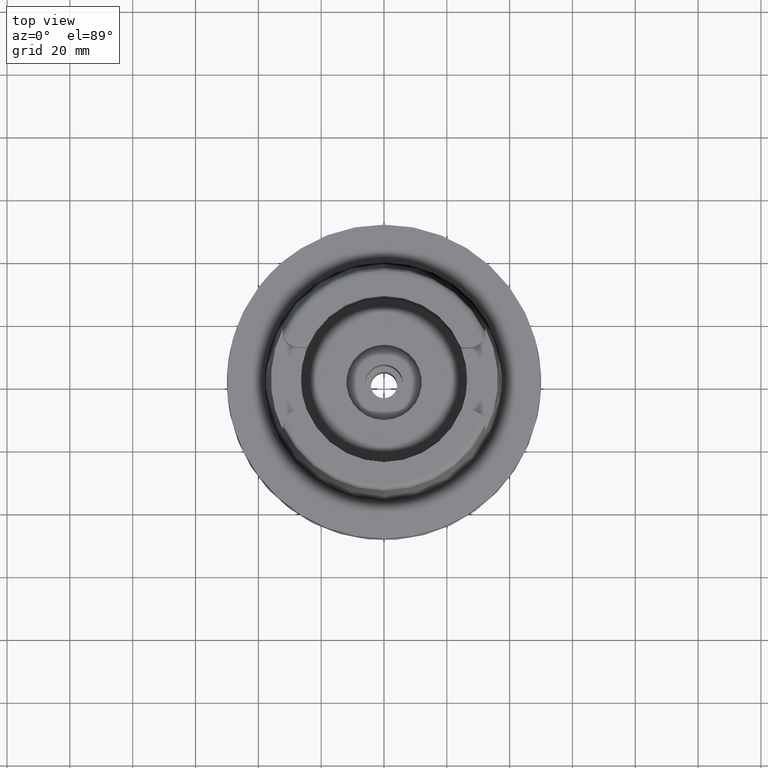
[diagram: clean part render]
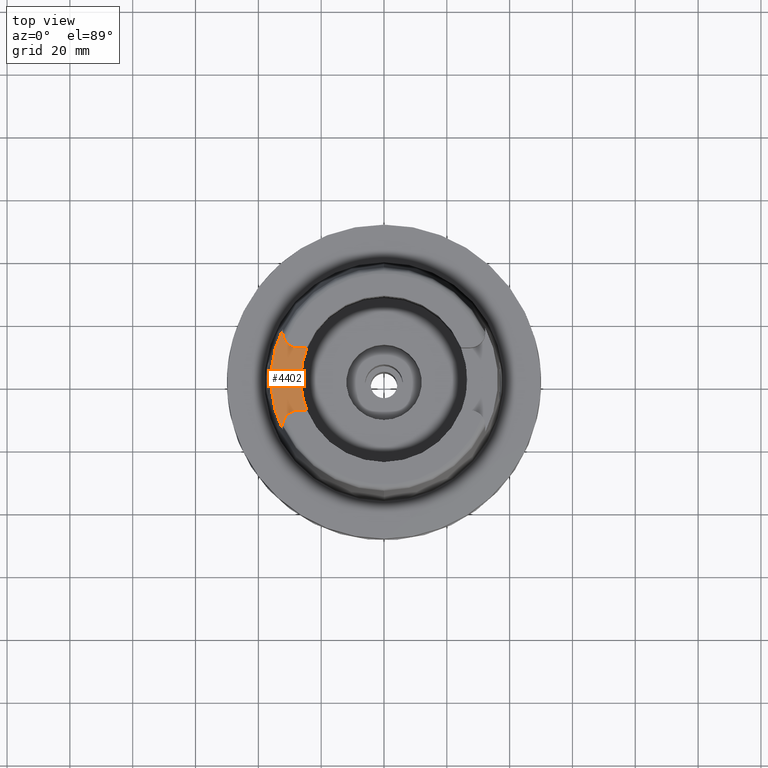
[diagram: same view with one face highlighted and labeled with its STEP entity id]
A machine part, top view. The second image highlights one B-rep face of the part: STEP entity #4402.
In plain terms, the highlighted planar face has unit normal (0, 0, 1).
Its self-contained STEP definition (entity closure, byte-faithful):
#16 = DIRECTION ( 'NONE',  ( 0.0000000000000000000, 0.0000000000000000000, 1.000000000000000000 ) ) ;
#41 = DIRECTION ( 'NONE',  ( -0.9259134021805098813, 0.3777358490566039562, 0.0000000000000000000 ) ) ;
#120 = EDGE_CURVE ( 'NONE', #562, #2157, #2807, .T. ) ;
#295 = CARTESIAN_POINT ( 'NONE',  ( -32.24999876011999334, -15.99794043148000000, 40.00000000000000000 ) ) ;
#401 = DIRECTION ( 'NONE',  ( 0.0000000000000000000, 0.0000000000000000000, 1.000000000000000000 ) ) ;
#410 = AXIS2_PLACEMENT_3D ( 'NONE', #4369, #5250, #4397 ) ;
#504 = DIRECTION ( 'NONE',  ( -0.8958345712659759874, -0.4443876921390880197, 0.0000000000000000000 ) ) ;
#516 = VERTEX_POINT ( 'NONE', #1895 ) ;
#526 = ORIENTED_EDGE ( 'NONE', *, *, #1340, .F. ) ;
#562 = VERTEX_POINT ( 'NONE', #3797 ) ;
#592 = CARTESIAN_POINT ( 'NONE',  ( -32.25000000000000000, -14.89000000000000057, 40.00000000000000000 ) ) ;
#709 = CIRCLE ( 'NONE', #2599, 26.50000000000000711 ) ;
#839 = DIRECTION ( 'NONE',  ( -1.000000000000000000, 0.0000000000000000000, 0.0000000000000000000 ) ) ;
#917 = VERTEX_POINT ( 'NONE', #592 ) ;
#1203 = EDGE_LOOP ( 'NONE', ( #5351, #526, #3476, #2352, #4622, #2424, #3147, #4426 ) ) ;
#1206 = CARTESIAN_POINT ( 'NONE',  ( -24.53670515777999839, -10.00999999999999979, 40.00000000000000000 ) ) ;
#1269 = EDGE_CURVE ( 'NONE', #917, #4922, #3735, .T. ) ;
#1310 = DIRECTION ( 'NONE',  ( 1.000000000000000000, 0.0000000000000000000, 0.0000000000000000000 ) ) ;
#1340 = EDGE_CURVE ( 'NONE', #516, #562, #2387, .T. ) ;
#1442 = EDGE_CURVE ( 'NONE', #4922, #2890, #4294, .T. ) ;
#1565 = EDGE_CURVE ( 'NONE', #2890, #516, #3277, .T. ) ;
#1665 = VECTOR ( 'NONE', #4693, 1000.000000000000000 ) ;
#1788 = FACE_OUTER_BOUND ( 'NONE', #1203, .T. ) ;
#1895 = CARTESIAN_POINT ( 'NONE',  ( -32.25000000000000000, 14.89000000000000057, 40.00000000000000000 ) ) ;
#2157 = VERTEX_POINT ( 'NONE', #3802 ) ;
#2177 = CARTESIAN_POINT ( 'NONE',  ( 0.0000000000000000000, 0.0000000000000000000, 40.00000000000000000 ) ) ;
#2352 = ORIENTED_EDGE ( 'NONE', *, *, #1442, .F. ) ;
#2387 = CIRCLE ( 'NONE', #4099, 4.880000000000002558 ) ;
#2391 = CARTESIAN_POINT ( 'NONE',  ( -27.36999999999999744, 10.00999999999999979, 40.00000000000000000 ) ) ;
#2424 = ORIENTED_EDGE ( 'NONE', *, *, #3397, .F. ) ;
#2560 = EDGE_CURVE ( 'NONE', #2157, #4572, #709, .T. ) ;
#2572 = CARTESIAN_POINT ( 'NONE',  ( -27.36999999999999744, -10.00999999999999979, 40.00000000000000000 ) ) ;
#2578 = AXIS2_PLACEMENT_3D ( 'NONE', #3432, #5151, #504 ) ;
#2599 = AXIS2_PLACEMENT_3D ( 'NONE', #3003, #16, #41 ) ;
#2745 = VECTOR ( 'NONE', #5420, 1000.000000000000000 ) ;
#2807 = LINE ( 'NONE', #2391, #2745 ) ;
#2817 = CIRCLE ( 'NONE', #410, 4.879999999999999005 ) ;
#2890 = VERTEX_POINT ( 'NONE', #5140 ) ;
#3003 = CARTESIAN_POINT ( 'NONE',  ( 0.0000000000000000000, 0.0000000000000000000, 40.00000000000000000 ) ) ;
#3036 = CARTESIAN_POINT ( 'NONE',  ( -24.53670515777999839, -10.00999999999999979, 40.00000000000000000 ) ) ;
#3147 = ORIENTED_EDGE ( 'NONE', *, *, #3606, .F. ) ;
#3277 = LINE ( 'NONE', #5036, #5293 ) ;
#3348 = LINE ( 'NONE', #3036, #1665 ) ;
#3397 = EDGE_CURVE ( 'NONE', #4049, #917, #2817, .T. ) ;
#3432 = CARTESIAN_POINT ( 'NONE',  ( 0.0000000000000000000, 0.0000000000000000000, 40.00000000000000000 ) ) ;
#3476 = ORIENTED_EDGE ( 'NONE', *, *, #1565, .F. ) ;
#3606 = EDGE_CURVE ( 'NONE', #4572, #4049, #3348, .T. ) ;
#3735 = LINE ( 'NONE', #4607, #4646 ) ;
#3797 = CARTESIAN_POINT ( 'NONE',  ( -27.36999999999999744, 10.00999999999999979, 40.00000000000000000 ) ) ;
#3802 = CARTESIAN_POINT ( 'NONE',  ( -24.53670515777999839, 10.00999999999999979, 40.00000000000000000 ) ) ;
#4049 = VERTEX_POINT ( 'NONE', #2572 ) ;
#4099 = AXIS2_PLACEMENT_3D ( 'NONE', #4691, #4336, #839 ) ;
#4294 = CIRCLE ( 'NONE', #2578, 35.99995025243999436 ) ;
#4336 = DIRECTION ( 'NONE',  ( 0.0000000000000000000, 0.0000000000000000000, 1.000000000000000000 ) ) ;
#4369 = CARTESIAN_POINT ( 'NONE',  ( -27.36999999999999744, -14.89000000000000057, 40.00000000000000000 ) ) ;
#4397 = DIRECTION ( 'NONE',  ( 0.0000000000000000000, 1.000000000000000000, 0.0000000000000000000 ) ) ;
#4402 = ADVANCED_FACE ( 'NONE', ( #1788 ), #5137, .T. ) ;
#4426 = ORIENTED_EDGE ( 'NONE', *, *, #2560, .F. ) ;
#4456 = AXIS2_PLACEMENT_3D ( 'NONE', #2177, #401, #1310 ) ;
#4572 = VERTEX_POINT ( 'NONE', #1206 ) ;
#4607 = CARTESIAN_POINT ( 'NONE',  ( -32.25000000000000000, -14.89000000000000057, 40.00000000000000000 ) ) ;
#4622 = ORIENTED_EDGE ( 'NONE', *, *, #1269, .F. ) ;
#4646 = VECTOR ( 'NONE', #5466, 1000.000000000000000 ) ;
#4691 = CARTESIAN_POINT ( 'NONE',  ( -27.36999999999999744, 14.89000000000000057, 40.00000000000000000 ) ) ;
#4693 = DIRECTION ( 'NONE',  ( -1.000000000000000000, 1.435733797136999970E-13, 0.0000000000000000000 ) ) ;
#4922 = VERTEX_POINT ( 'NONE', #295 ) ;
#5004 = DIRECTION ( 'NONE',  ( 4.825266097350802439E-06, -0.9999999999883583124, 1.731606717192930698E-13 ) ) ;
#5036 = CARTESIAN_POINT ( 'NONE',  ( -32.25000534596000534, 15.99791057084999935, 40.00000000000000000 ) ) ;
#5137 = PLANE ( 'NONE',  #4456 ) ;
#5140 = CARTESIAN_POINT ( 'NONE',  ( -32.24999999999000266, 15.99793480980999938, 40.00000000000000000 ) ) ;
#5151 = DIRECTION ( 'NONE',  ( 0.0000000000000000000, 0.0000000000000000000, -1.000000000000000000 ) ) ;
#5250 = DIRECTION ( 'NONE',  ( 0.0000000000000000000, 0.0000000000000000000, 1.000000000000000000 ) ) ;
#5293 = VECTOR ( 'NONE', #5004, 1000.000000000000114 ) ;
#5351 = ORIENTED_EDGE ( 'NONE', *, *, #120, .F. ) ;
#5420 = DIRECTION ( 'NONE',  ( 1.000000000000000000, 1.442003377036999905E-13, 0.0000000000000000000 ) ) ;
#5466 = DIRECTION ( 'NONE',  ( 1.119083709707969931E-06, -0.9999999999993738342, -1.731560047848954504E-13 ) ) ;